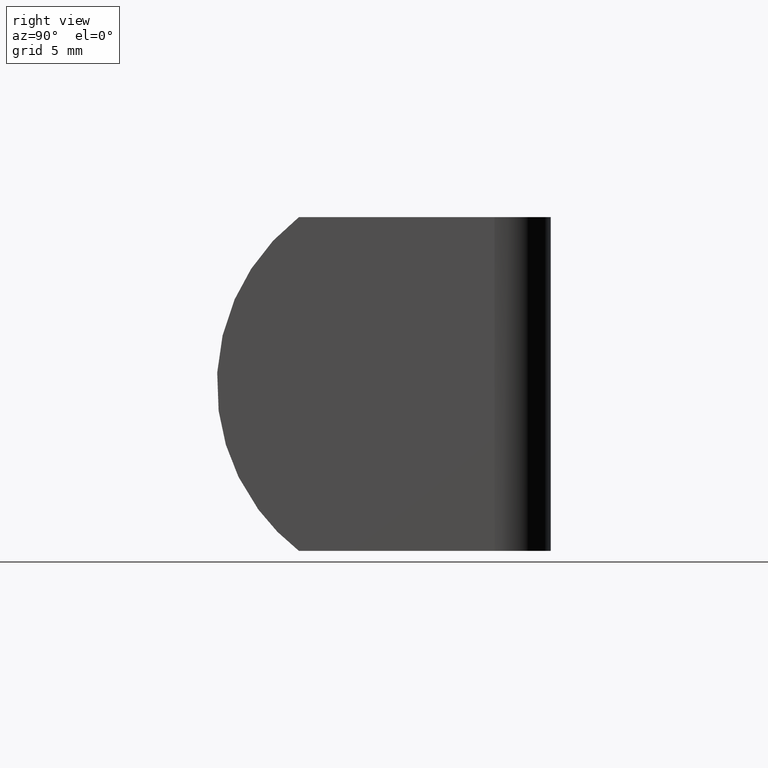
[diagram: clean part render]
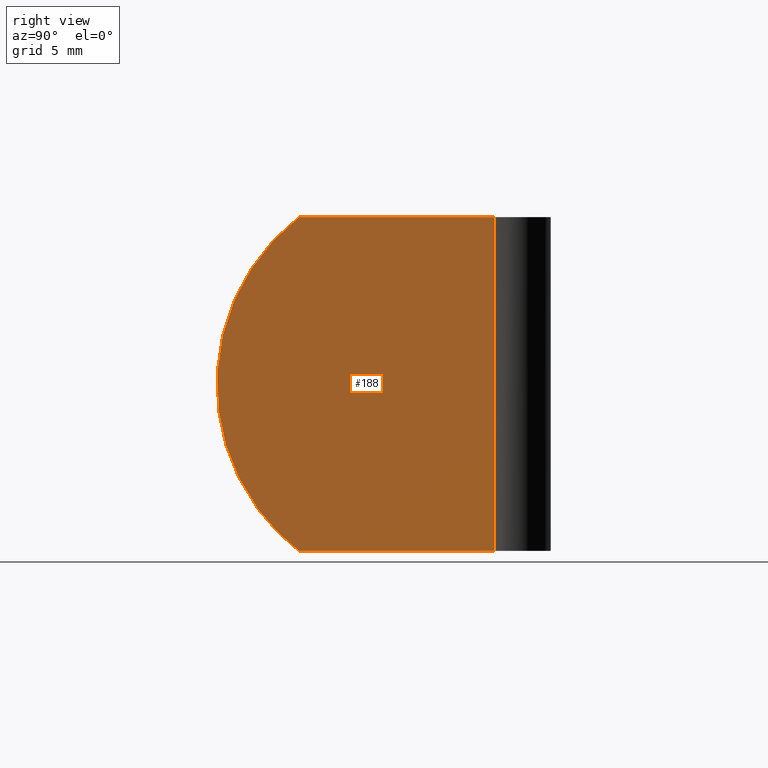
[diagram: same view with one face highlighted and labeled with its STEP entity id]
A machine part, right view. The second image highlights one B-rep face of the part: STEP entity #188.
In plain terms, the highlighted face is a freeform B-spline surface patch.
Its self-contained STEP definition (entity closure, byte-faithful):
#60=CARTESIAN_POINT('',(23.800000000000001,-3.200000000000000,-9.500000000000000));
#61=VERTEX_POINT('',#60);
#82=CARTESIAN_POINT('',(23.800000000000001,-3.200000000000000,9.500000000000000));
#83=VERTEX_POINT('',#82);
#97=CARTESIAN_POINT('',(23.800000000000001,-3.200000000000000,-9.500000000000000));
#98=CARTESIAN_POINT('',(23.800000000000001,-3.200000000000000,9.500000000000000));
#99=QUASI_UNIFORM_CURVE('',1,(#97,#98),.UNSPECIFIED.,.F.,.U.);
#100=EDGE_CURVE('',#61,#83,#99,.T.);
#151=CARTESIAN_POINT('',(23.800000000000001,-19.789209969376540,-10.449049963174311));
#152=CARTESIAN_POINT('',(23.800000000000001,-2.410789606834443,-10.449049963174311));
#153=CARTESIAN_POINT('',(23.800000000000001,-19.789209969376540,10.449050472794021));
#154=CARTESIAN_POINT('',(23.800000000000001,-2.410789606834443,10.449050472794021));
#155=B_SPLINE_SURFACE_WITH_KNOTS('',1,1,((#151,#153),(#152,#154)),.UNSPECIFIED.,.F.,.F.,.U.,(2,2),(2,2),(0.0,17.378420362542101),(0.0,20.898100435968342),.UNSPECIFIED.);
#156=CARTESIAN_POINT('',(23.800000000000001,-14.331439149307560,-9.500000000000000));
#157=VERTEX_POINT('',#156);
#158=CARTESIAN_POINT('',(23.800000000000001,-14.331439149307560,-9.500000000000000));
#159=CARTESIAN_POINT('',(23.800000000000001,-3.200000000000000,-9.500000000000000));
#160=QUASI_UNIFORM_CURVE('',1,(#158,#159),.UNSPECIFIED.,.F.,.U.);
#161=EDGE_CURVE('',#157,#61,#160,.T.);
#162=ORIENTED_EDGE('',*,*,#161,.T.);
#163=ORIENTED_EDGE('',*,*,#100,.T.);
#164=CARTESIAN_POINT('',(23.800000000000001,-14.331439149307601,9.500000000000000));
#165=VERTEX_POINT('',#164);
#166=CARTESIAN_POINT('',(23.800000000000001,-3.200000000000000,9.500000000000000));
#167=CARTESIAN_POINT('',(23.800000000000001,-14.331439149307601,9.500000000000000));
#168=QUASI_UNIFORM_CURVE('',1,(#166,#167),.UNSPECIFIED.,.F.,.U.);
#169=EDGE_CURVE('',#83,#165,#168,.T.);
#170=ORIENTED_EDGE('',*,*,#169,.T.);
#171=CARTESIAN_POINT('',(23.800000000000001,-14.331439149307601,9.499999999999996));
#172=CARTESIAN_POINT('',(23.800000000000004,-19.0,5.897129495611462));
#173=CARTESIAN_POINT('',(23.800000000000001,-19.0,-4.286122E-016));
#174=CARTESIAN_POINT('',(23.800000000000004,-19.0,-5.897129495611475));
#175=CARTESIAN_POINT('',(23.800000000000001,-14.331439149307579,-9.500000000000011));
#183=(BOUNDED_CURVE()B_SPLINE_CURVE(2,(#171,#172,#173,#174,#175),.UNSPECIFIED.,.F.,.U.)B_SPLINE_CURVE_WITH_KNOTS((3,2,3),(0.0,0.500000000000000,1.0),.UNSPECIFIED.)CURVE()GEOMETRIC_REPRESENTATION_ITEM()RATIONAL_B_SPLINE_CURVE((1.0,0.897483499135862,1.0,0.897483499135862,1.0))REPRESENTATION_ITEM(''));
#184=EDGE_CURVE('',#165,#157,#183,.T.);
#185=ORIENTED_EDGE('',*,*,#184,.T.);
#186=EDGE_LOOP('',(#162,#163,#170,#185));
#187=FACE_OUTER_BOUND('',#186,.T.);
#188=ADVANCED_FACE('',(#187),#155,.T.);